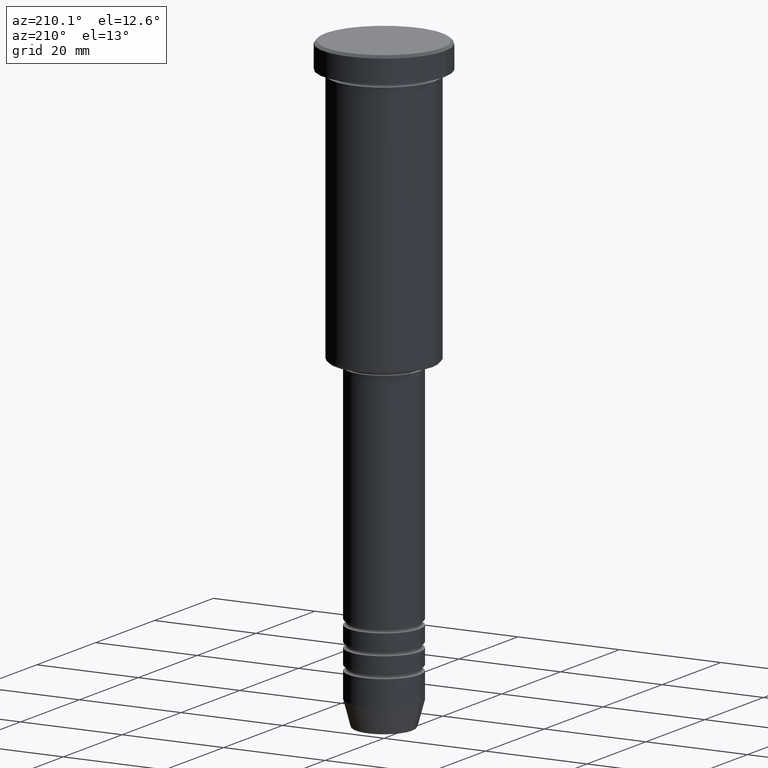
[diagram: clean part render]
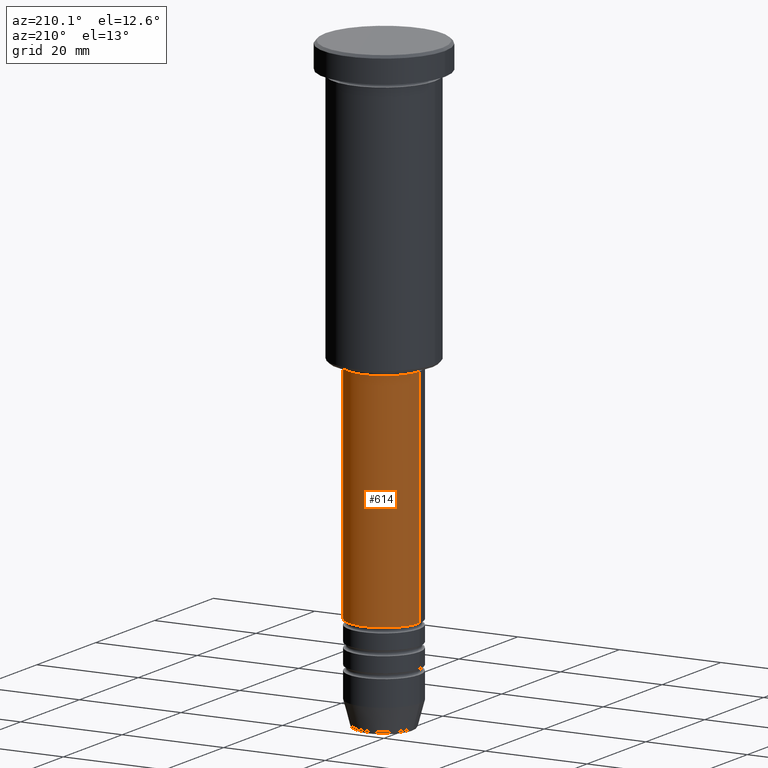
[diagram: same view with one face highlighted and labeled with its STEP entity id]
A machine part, auxiliary view. The second image highlights one B-rep face of the part: STEP entity #614.
In plain terms, the highlighted cylindrical surface (partial cylindrical patch) has radius 7 mm, axis along (-0, -0, 1).
Its self-contained STEP definition (entity closure, byte-faithful):
#51 = DIRECTION ( 'NONE',  ( -0.000000000000000000, -0.000000000000000000, 1.000000000000000000 ) ) ;
#77 = EDGE_CURVE ( 'NONE', #646, #1119, #125, .T. ) ;
#120 = CARTESIAN_POINT ( 'NONE',  ( 7.000000000000000888, 0.000000000000000000, -100.9999999999999716 ) ) ;
#125 = LINE ( 'NONE', #760, #650 ) ;
#140 = CARTESIAN_POINT ( 'NONE',  ( 7.000000000000000888, 0.000000000000000000, -57.00000000000002842 ) ) ;
#207 = ORIENTED_EDGE ( 'NONE', *, *, #77, .F. ) ;
#224 = CARTESIAN_POINT ( 'NONE',  ( -7.000000000000000888, 8.572527594031474176E-16, -57.00000000000002842 ) ) ;
#255 = DIRECTION ( 'NONE',  ( -0.000000000000000000, -0.000000000000000000, 1.000000000000000000 ) ) ;
#285 = CIRCLE ( 'NONE', #1153, 7.000000000000000888 ) ;
#301 = AXIS2_PLACEMENT_3D ( 'NONE', #1110, #713, #1014 ) ;
#310 = DIRECTION ( 'NONE',  ( -0.000000000000000000, -0.000000000000000000, 1.000000000000000000 ) ) ;
#373 = CARTESIAN_POINT ( 'NONE',  ( 0.000000000000000000, 0.000000000000000000, -100.9999999999999716 ) ) ;
#377 = VERTEX_POINT ( 'NONE', #460 ) ;
#405 = EDGE_CURVE ( 'NONE', #646, #377, #285, .T. ) ;
#411 = LINE ( 'NONE', #975, #735 ) ;
#416 = AXIS2_PLACEMENT_3D ( 'NONE', #1066, #255, #1004 ) ;
#418 = CYLINDRICAL_SURFACE ( 'NONE', #416, 7.000000000000000888 ) ;
#460 = CARTESIAN_POINT ( 'NONE',  ( -7.000000000000000888, 8.572527594031474176E-16, -100.9999999999999716 ) ) ;
#495 = EDGE_CURVE ( 'NONE', #377, #505, #411, .T. ) ;
#505 = VERTEX_POINT ( 'NONE', #224 ) ;
#577 = EDGE_CURVE ( 'NONE', #1119, #505, #1079, .T. ) ;
#614 = ADVANCED_FACE ( 'NONE', ( #1010 ), #418, .T. ) ;
#646 = VERTEX_POINT ( 'NONE', #120 ) ;
#650 = VECTOR ( 'NONE', #850, 1000.000000000000000 ) ;
#697 = EDGE_LOOP ( 'NONE', ( #1054, #1012, #915, #207 ) ) ;
#713 = DIRECTION ( 'NONE',  ( -0.000000000000000000, -0.000000000000000000, 1.000000000000000000 ) ) ;
#735 = VECTOR ( 'NONE', #51, 1000.000000000000000 ) ;
#745 = DIRECTION ( 'NONE',  ( 1.000000000000000000, 0.000000000000000000, 0.000000000000000000 ) ) ;
#760 = CARTESIAN_POINT ( 'NONE',  ( 7.000000000000000888, 0.000000000000000000, 0.000000000000000000 ) ) ;
#850 = DIRECTION ( 'NONE',  ( -0.000000000000000000, -0.000000000000000000, 1.000000000000000000 ) ) ;
#915 = ORIENTED_EDGE ( 'NONE', *, *, #577, .F. ) ;
#975 = CARTESIAN_POINT ( 'NONE',  ( -7.000000000000000888, 8.572527594031474176E-16, 0.000000000000000000 ) ) ;
#1004 = DIRECTION ( 'NONE',  ( 1.000000000000000000, 0.000000000000000000, 0.000000000000000000 ) ) ;
#1010 = FACE_OUTER_BOUND ( 'NONE', #697, .T. ) ;
#1012 = ORIENTED_EDGE ( 'NONE', *, *, #495, .T. ) ;
#1014 = DIRECTION ( 'NONE',  ( 1.000000000000000000, 0.000000000000000000, 0.000000000000000000 ) ) ;
#1054 = ORIENTED_EDGE ( 'NONE', *, *, #405, .T. ) ;
#1066 = CARTESIAN_POINT ( 'NONE',  ( 0.000000000000000000, 0.000000000000000000, 0.000000000000000000 ) ) ;
#1079 = CIRCLE ( 'NONE', #301, 7.000000000000000888 ) ;
#1110 = CARTESIAN_POINT ( 'NONE',  ( 0.000000000000000000, 0.000000000000000000, -57.00000000000002842 ) ) ;
#1119 = VERTEX_POINT ( 'NONE', #140 ) ;
#1153 = AXIS2_PLACEMENT_3D ( 'NONE', #373, #310, #745 ) ;